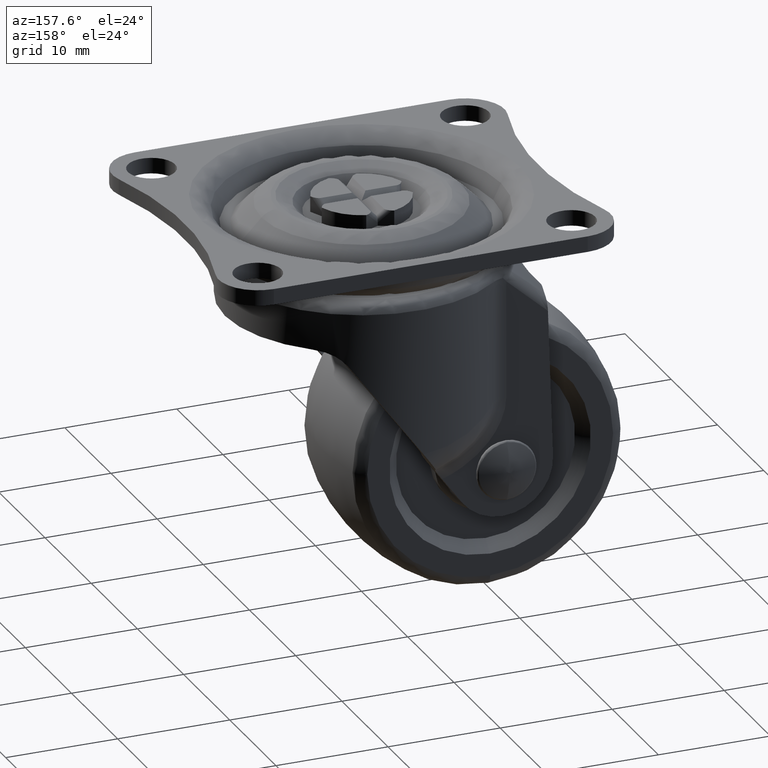
[diagram: clean part render]
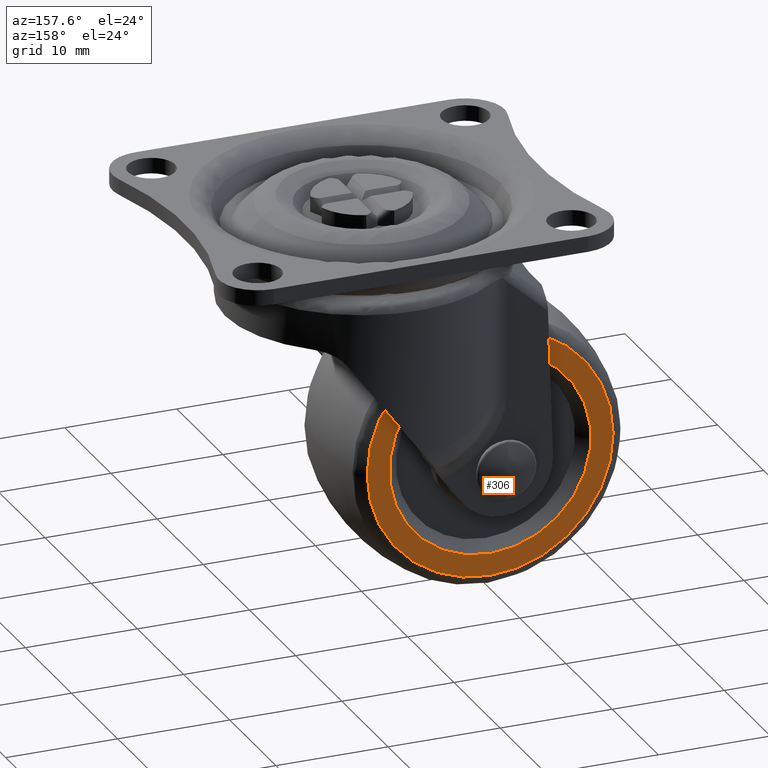
[diagram: same view with one face highlighted and labeled with its STEP entity id]
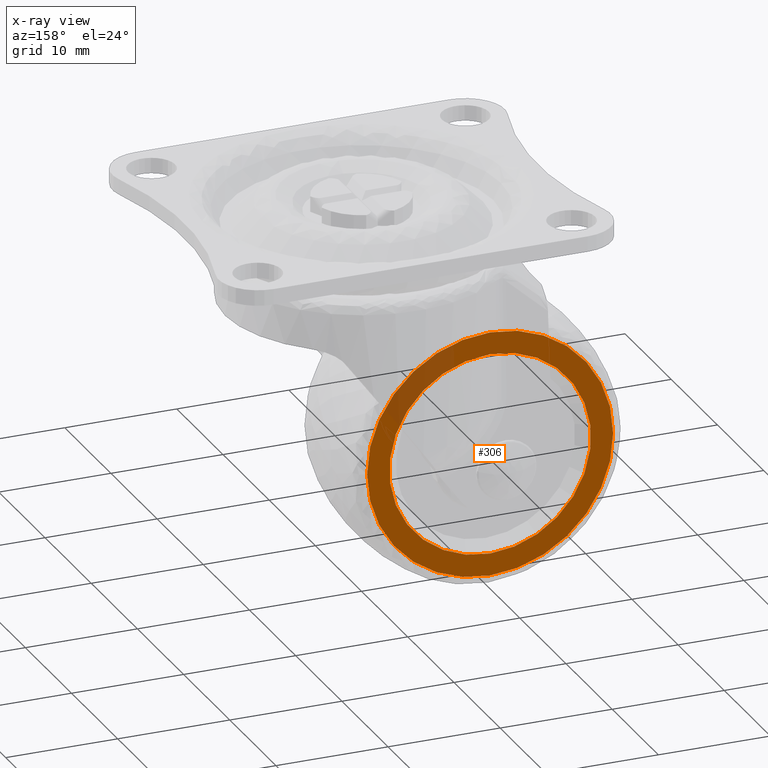
[diagram: x-ray of the same camera — body ghosted, the highlighted face saturated]
A machine part, auxiliary view. The second image highlights one B-rep face of the part: STEP entity #306.
The next image is the same camera in x-ray: the body ghosted, the highlighted face saturated — about 12% of this face is hidden behind the body in this view.
In plain terms, the highlighted planar face has unit normal (0, -1, 0).
Its self-contained STEP definition (entity closure, byte-faithful):
#306=ADVANCED_FACE('',(#1302,#1303),#1301,.F.);
#1301=PLANE('',#3915);
#1302=FACE_OUTER_BOUND('',#3916,.T.);
#1303=FACE_BOUND('',#3917,.T.);
#3912=CARTESIAN_POINT('',(-3.18077648920E+01,6.00000000000E+00,2.73880130000E+00));
#3913=DIRECTION('',(0.00000000000E+00,-1.00000000000E+00,0.00000000000E+00));
#3914=DIRECTION('',(0.00000000000E+00,0.00000000000E+00,-1.00000000000E+00));
#3915=AXIS2_PLACEMENT_3D('',#3912,#3913,#3914);
#3916=EDGE_LOOP('',(#5777,#5778));
#3917=EDGE_LOOP('',(#5779,#5780));
#5777=ORIENTED_EDGE('',*,*,#6645,.F.);
#5778=ORIENTED_EDGE('',*,*,#6646,.F.);
#5779=ORIENTED_EDGE('',*,*,#6647,.T.);
#5780=ORIENTED_EDGE('',*,*,#6648,.T.);
#6645=EDGE_CURVE('',#8466,#8467,#8468,.T.);
#6646=EDGE_CURVE('',#8467,#8466,#8474,.T.);
#6647=EDGE_CURVE('',#8480,#8481,#8482,.T.);
#6648=EDGE_CURVE('',#8481,#8480,#8488,.T.);
#8466=VERTEX_POINT('',#11860);
#8467=VERTEX_POINT('',#11861);
#8468=CIRCLE('',#11865,1.09733910000E+01);
#8474=CIRCLE('',#11869,1.09733910000E+01);
#8480=VERTEX_POINT('',#11870);
#8481=VERTEX_POINT('',#11871);
#8482=CIRCLE('',#11875,9.00000000000E+00);
#8488=CIRCLE('',#11879,9.00000000000E+00);
#11860=CARTESIAN_POINT('',(-9.00000000000E+00,6.00000000000E+00,-1.15266070000E+01));
#11861=CARTESIAN_POINT('',(-9.00000000000E+00,6.00000000000E+00,-3.34733890000E+01));
#11862=CARTESIAN_POINT('',(-9.00000000000E+00,6.00000000000E+00,-2.24999980000E+01));
#11863=DIRECTION('',(0.00000000000E+00,-1.00000000000E+00,-0.00000000000E+00));
#11864=DIRECTION('',(-1.22460635382E-16,0.00000000000E+00,-1.00000000000E+00));
#11865=AXIS2_PLACEMENT_3D('',#11862,#11863,#11864);
#11866=CARTESIAN_POINT('',(-9.00000000000E+00,6.00000000000E+00,-2.24999980000E+01));
#11867=DIRECTION('',(0.00000000000E+00,-1.00000000000E+00,-0.00000000000E+00));
#11868=DIRECTION('',(-1.22460635382E-16,0.00000000000E+00,-1.00000000000E+00));
#11869=AXIS2_PLACEMENT_3D('',#11866,#11867,#11868);
#11870=CARTESIAN_POINT('',(-9.00000000000E+00,6.00000000000E+00,-3.14999980000E+01));
#11871=CARTESIAN_POINT('',(-9.00000000000E+00,6.00000000000E+00,-1.34999980000E+01));
#11872=CARTESIAN_POINT('',(-9.00000000000E+00,6.00000000000E+00,-2.24999980000E+01));
#11873=DIRECTION('',(0.00000000000E+00,-1.00000000000E+00,-0.00000000000E+00));
#11874=DIRECTION('',(-1.22460635382E-16,0.00000000000E+00,-1.00000000000E+00));
#11875=AXIS2_PLACEMENT_3D('',#11872,#11873,#11874);
#11876=CARTESIAN_POINT('',(-9.00000000000E+00,6.00000000000E+00,-2.24999980000E+01));
#11877=DIRECTION('',(0.00000000000E+00,-1.00000000000E+00,-0.00000000000E+00));
#11878=DIRECTION('',(-1.22460635382E-16,0.00000000000E+00,-1.00000000000E+00));
#11879=AXIS2_PLACEMENT_3D('',#11876,#11877,#11878);